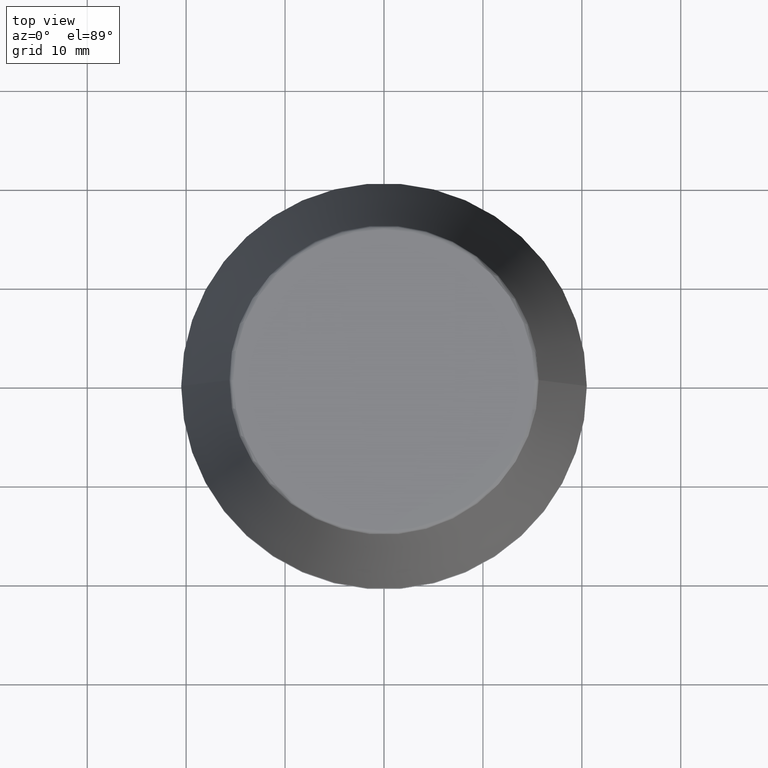
[diagram: clean part render]
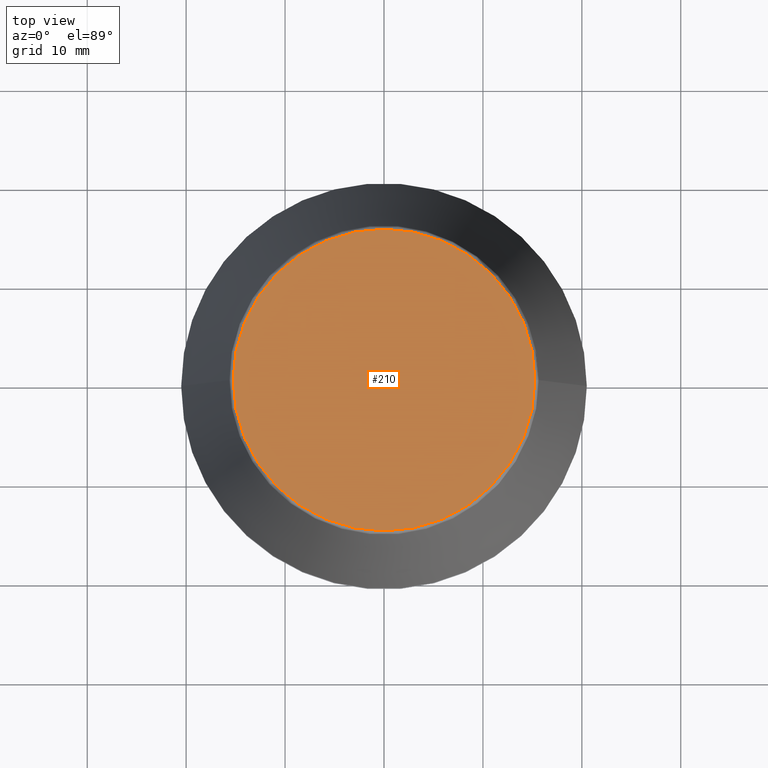
[diagram: same view with one face highlighted and labeled with its STEP entity id]
A machine part, top view. The second image highlights one B-rep face of the part: STEP entity #210.
In plain terms, the highlighted planar face has unit normal (0, 0, -1).
Its self-contained STEP definition (entity closure, byte-faithful):
#4 = FACE_OUTER_BOUND ( 'NONE', #289, .T. ) ;
#15 = EDGE_CURVE ( 'NONE', #206, #374, #55, .T. ) ;
#53 = ORIENTED_EDGE ( 'NONE', *, *, #15, .T. ) ;
#55 = CIRCLE ( 'NONE', #135, 15.24773554530077600 ) ;
#58 = CARTESIAN_POINT ( 'NONE',  ( 0.0000000000000000000, 0.0000000000000000000, 46.00000000000000000 ) ) ;
#83 = CARTESIAN_POINT ( 'NONE',  ( 0.0000000000000000000, 15.24773554530077600, 46.00000000000000000 ) ) ;
#116 = DIRECTION ( 'NONE',  ( -0.0000000000000000000, -0.0000000000000000000, 1.000000000000000000 ) ) ;
#134 = PLANE ( 'NONE',  #276 ) ;
#135 = AXIS2_PLACEMENT_3D ( 'NONE', #58, #271, #314 ) ;
#171 = DIRECTION ( 'NONE',  ( 0.0000000000000000000, 0.0000000000000000000, -1.000000000000000000 ) ) ;
#184 = CARTESIAN_POINT ( 'NONE',  ( -15.24773554530077600, 1.891563625393435400E-015, 46.00000000000000000 ) ) ;
#206 = VERTEX_POINT ( 'NONE', #309 ) ;
#210 = ADVANCED_FACE ( 'NONE', ( #4 ), #134, .F. ) ;
#246 = AXIS2_PLACEMENT_3D ( 'NONE', #283, #116, #315 ) ;
#252 = DIRECTION ( 'NONE',  ( -1.000000000000000000, 0.0000000000000000000, -0.0000000000000000000 ) ) ;
#256 = ORIENTED_EDGE ( 'NONE', *, *, #354, .T. ) ;
#271 = DIRECTION ( 'NONE',  ( -0.0000000000000000000, -0.0000000000000000000, 1.000000000000000000 ) ) ;
#276 = AXIS2_PLACEMENT_3D ( 'NONE', #83, #171, #252 ) ;
#283 = CARTESIAN_POINT ( 'NONE',  ( 0.0000000000000000000, 0.0000000000000000000, 46.00000000000000000 ) ) ;
#289 = EDGE_LOOP ( 'NONE', ( #53, #256 ) ) ;
#309 = CARTESIAN_POINT ( 'NONE',  ( 15.24773554530077600, 0.0000000000000000000, 46.00000000000000000 ) ) ;
#314 = DIRECTION ( 'NONE',  ( 1.000000000000000000, 0.0000000000000000000, 0.0000000000000000000 ) ) ;
#315 = DIRECTION ( 'NONE',  ( 1.000000000000000000, 0.0000000000000000000, 0.0000000000000000000 ) ) ;
#325 = CIRCLE ( 'NONE', #246, 15.24773554530077600 ) ;
#354 = EDGE_CURVE ( 'NONE', #374, #206, #325, .T. ) ;
#374 = VERTEX_POINT ( 'NONE', #184 ) ;